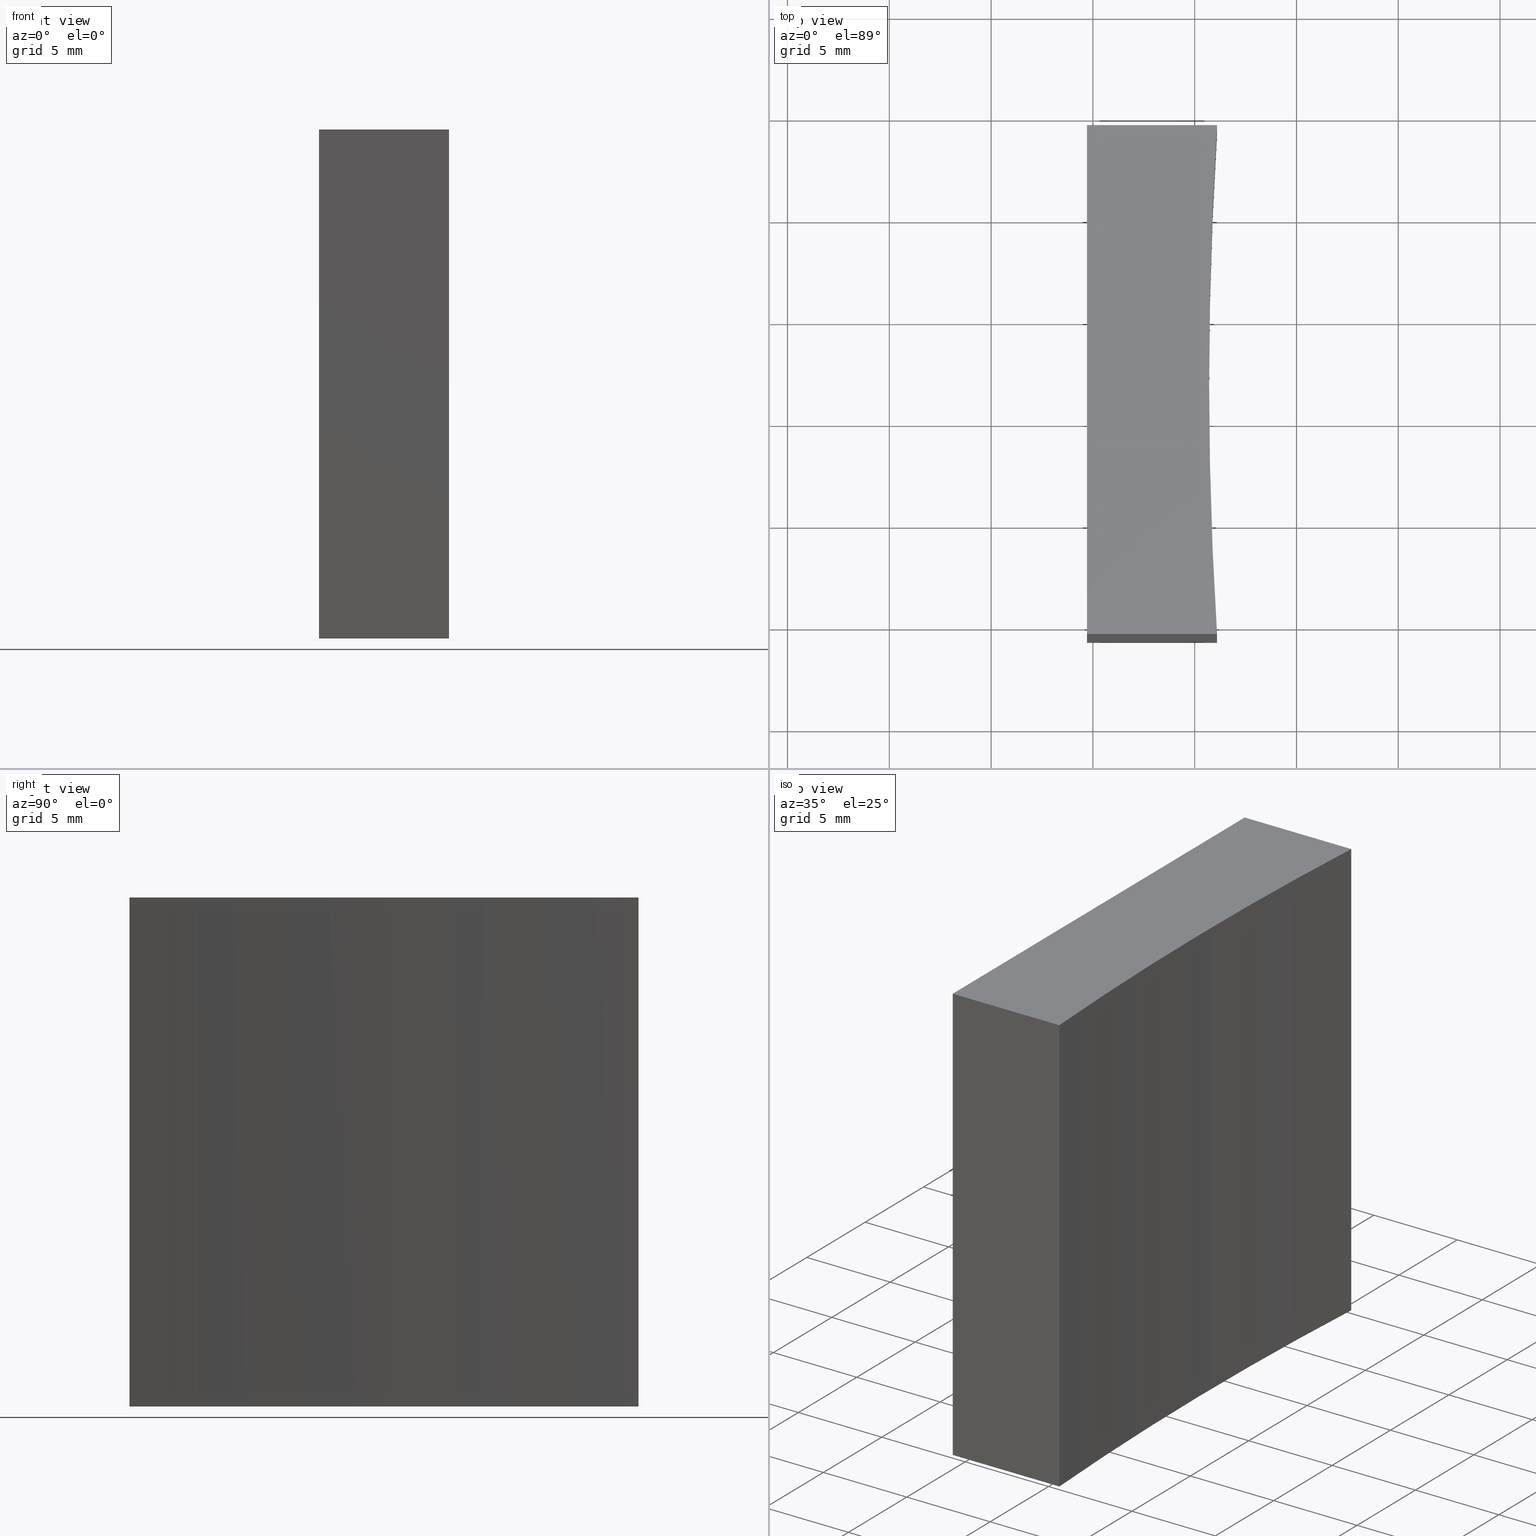
[diagram: canonical four-view strip — front | top / right | iso, engineering-drawing reading convention]
A machine part, canonical four-view strip (front | top / right | iso — engineering-drawing reading convention). The complete STEP part file that produces these views, byte-faithful:
ISO-10303-21;
HEADER;
FILE_DESCRIPTION (( 'STEP AP214' ),
    '1' );
FILE_NAME ('280018.STEP',
    '2019-08-08T02:40:54',
    ( '' ),
    ( '' ),
    'SwSTEP 2.0',
    'SolidWorks 2016',
    '' );
FILE_SCHEMA (( 'AUTOMOTIVE_DESIGN' ));
ENDSEC;

DATA;
#1 = DIRECTION ( 'NONE',  ( -1.000000000000000000, -0.0000000000000000000, -0.0000000000000000000 ) ) ;
#2 = FACE_OUTER_BOUND ( 'NONE', #105, .T. ) ;
#3 = CARTESIAN_POINT ( 'NONE',  ( 291.0981428478888800, 79.35792926776707600, 0.0000000000000000000 ) ) ;
#4 = DIRECTION ( 'NONE',  ( -1.000000000000000000, -0.0000000000000000000, -0.0000000000000000000 ) ) ;
#5 = VECTOR ( 'NONE', #77, 1000.000000000000000 ) ;
#6 = ORIENTED_EDGE ( 'NONE', *, *, #238, .F. ) ;
#7 = DIRECTION ( 'NONE',  ( -0.0000000000000000000, -0.0000000000000000000, -1.000000000000000000 ) ) ;
#8 = VERTEX_POINT ( 'NONE', #39 ) ;
#9 = APPLICATION_PROTOCOL_DEFINITION ( 'draft international standard', 'automotive_design', 1998, #206 ) ;
#10 = PLANE ( 'NONE',  #226 ) ;
#11 = SURFACE_STYLE_FILL_AREA ( #186 ) ;
#12 = ADVANCED_FACE ( 'NONE', ( #89 ), #219, .T. ) ;
#13 = DIRECTION ( 'NONE',  ( 0.0000000000000000000, 0.0000000000000000000, 1.000000000000000000 ) ) ;
#14 = ORIENTED_EDGE ( 'NONE', *, *, #79, .T. ) ;
#15 = AXIS2_PLACEMENT_3D ( 'NONE', #197, #218, #196 ) ;
#16 = FACE_OUTER_BOUND ( 'NONE', #211, .T. ) ;
#17 = SURFACE_STYLE_USAGE ( .BOTH. , #122 ) ;
#18 = ORIENTED_EDGE ( 'NONE', *, *, #192, .T. ) ;
#19 = PRODUCT_DEFINITION_SHAPE ( 'NONE', 'NONE',  #72 ) ;
#20 = LINE ( 'NONE', #48, #32 ) ;
#21 = ORIENTED_EDGE ( 'NONE', *, *, #85, .F. ) ;
#22 = DIRECTION ( 'NONE',  ( -1.000000000000000000, 0.0000000000000000000, 0.0000000000000000000 ) ) ;
#23 = DIRECTION ( 'NONE',  ( 1.000000000000000000, 9.771549775893063200E-015, -0.0000000000000000000 ) ) ;
#24 = ORIENTED_EDGE ( 'NONE', *, *, #85, .T. ) ;
#25 = CARTESIAN_POINT ( 'NONE',  ( 291.0981428478888800, 54.35792926776720400, 25.00000000000000000 ) ) ;
#26 = CIRCLE ( 'NONE', #189, 200.0000000000000000 ) ;
#27 = CYLINDRICAL_SURFACE ( 'NONE', #58, 200.0000000000000000 ) ;
#28 = CARTESIAN_POINT ( 'NONE',  ( 284.7071356312820900, 79.35792926776707600, 25.00000000000000000 ) ) ;
#29 = CARTESIAN_POINT ( 'NONE',  ( 490.7071356312802700, 66.85792926776710500, 0.0000000000000000000 ) ) ;
#30 = APPLICATION_PROTOCOL_DEFINITION ( 'draft international standard', 'automotive_design', 1998, #135 ) ;
#31 =( LENGTH_UNIT ( ) NAMED_UNIT ( * ) SI_UNIT ( .MILLI., .METRE. ) );
#32 = VECTOR ( 'NONE', #114, 1000.000000000000000 ) ;
#33 = EDGE_LOOP ( 'NONE', ( #138, #136, #153, #158, #176 ) ) ;
#34 = EDGE_CURVE ( 'NONE', #40, #53, #187, .T. ) ;
#35 = ORIENTED_EDGE ( 'NONE', *, *, #70, .T. ) ;
#36 =( GEOMETRIC_REPRESENTATION_CONTEXT ( 3 ) GLOBAL_UNCERTAINTY_ASSIGNED_CONTEXT ( ( #52 ) ) GLOBAL_UNIT_ASSIGNED_CONTEXT ( ( #31, #188, #209 ) ) REPRESENTATION_CONTEXT ( 'NONE', 'WORKASPACE' ) );
#37 = MANIFOLD_SOLID_BREP ( '͹̨-����1', #193 ) ;
#38 = EDGE_LOOP ( 'NONE', ( #14, #112, #67, #18 ) ) ;
#39 = CARTESIAN_POINT ( 'NONE',  ( 290.7071356312802700, 66.85792926776710500, 0.0000000000000000000 ) ) ;
#40 = VERTEX_POINT ( 'NONE', #139 ) ;
#41 = EDGE_CURVE ( 'NONE', #53, #54, #57, .T. ) ;
#42 = CARTESIAN_POINT ( 'NONE',  ( 284.7071356312820900, 54.35792926776707600, 0.0000000000000000000 ) ) ;
#43 = DIRECTION ( 'NONE',  ( 1.000000000000000000, 0.0000000000000000000, 0.0000000000000000000 ) ) ;
#44 = DIRECTION ( 'NONE',  ( -0.0000000000000000000, -0.0000000000000000000, -1.000000000000000000 ) ) ;
#45 = SHAPE_DEFINITION_REPRESENTATION ( #19, #104 ) ;
#46 = VECTOR ( 'NONE', #50, 1000.000000000000000 ) ;
#47 = PRESENTATION_STYLE_ASSIGNMENT (( #17 ) ) ;
#48 = CARTESIAN_POINT ( 'NONE',  ( 291.0981428478888800, 54.35792926776714000, 25.00000000000000000 ) ) ;
#49 = ADVANCED_FACE ( 'NONE', ( #232 ), #107, .F. ) ;
#50 = DIRECTION ( 'NONE',  ( -0.0000000000000000000, -0.0000000000000000000, -1.000000000000000000 ) ) ;
#51 = VERTEX_POINT ( 'NONE', #3 ) ;
#52 = UNCERTAINTY_MEASURE_WITH_UNIT (LENGTH_MEASURE( 1.000000000000000100E-005 ), #31, 'distance_accuracy_value', 'NONE');
#53 = VERTEX_POINT ( 'NONE', #63 ) ;
#54 = VERTEX_POINT ( 'NONE', #202 ) ;
#55 = STYLED_ITEM ( 'NONE', ( #47 ), #37 ) ;
#56 = VECTOR ( 'NONE', #131, 1000.000000000000000 ) ;
#57 = CIRCLE ( 'NONE', #99, 200.0000000000000000 ) ;
#58 = AXIS2_PLACEMENT_3D ( 'NONE', #239, #44, #22 ) ;
#59 =( NAMED_UNIT ( * ) SI_UNIT ( $, .STERADIAN. ) SOLID_ANGLE_UNIT ( ) );
#60 = CARTESIAN_POINT ( 'NONE',  ( 284.7071356312820900, 66.85792926776707600, 0.0000000000000000000 ) ) ;
#61 = CARTESIAN_POINT ( 'NONE',  ( 490.7071356312802700, 66.85792926776710500, 0.0000000000000000000 ) ) ;
#62 = VERTEX_POINT ( 'NONE', #127 ) ;
#63 = CARTESIAN_POINT ( 'NONE',  ( 290.7071356312802700, 66.85792926776710500, 25.00000000000000000 ) ) ;
#64 = CARTESIAN_POINT ( 'NONE',  ( 284.7071356312820900, 54.35792926776707600, 25.00000000000000000 ) ) ;
#65 = DIRECTION ( 'NONE',  ( -0.0000000000000000000, -0.0000000000000000000, -1.000000000000000000 ) ) ;
#66 = PRESENTATION_LAYER_ASSIGNMENT (  '', '', ( #55 ) ) ;
#67 = ORIENTED_EDGE ( 'NONE', *, *, #142, .F. ) ;
#68 = FILL_AREA_STYLE_COLOUR ( '', #150 ) ;
#69 = AXIS2_PLACEMENT_3D ( 'NONE', #149, #13, #152 ) ;
#70 = EDGE_CURVE ( 'NONE', #210, #8, #224, .T. ) ;
#71 = LINE ( 'NONE', #108, #217 ) ;
#72 = PRODUCT_DEFINITION ( 'δ֪', '', #116, #156 ) ;
#73 = FILL_AREA_STYLE_COLOUR ( '', #118 ) ;
#74 = UNCERTAINTY_MEASURE_WITH_UNIT (LENGTH_MEASURE( 1.000000000000000100E-005 ), #207, 'distance_accuracy_value', 'NONE');
#75 = ORIENTED_EDGE ( 'NONE', *, *, #161, .T. ) ;
#76 = DIRECTION ( 'NONE',  ( 0.0000000000000000000, -1.000000000000000000, 0.0000000000000000000 ) ) ;
#77 = DIRECTION ( 'NONE',  ( -0.0000000000000000000, -1.000000000000000000, -0.0000000000000000000 ) ) ;
#78 = CARTESIAN_POINT ( 'NONE',  ( 490.7071356312802700, 66.85792926776710500, 0.0000000000000000000 ) ) ;
#79 = EDGE_CURVE ( 'NONE', #51, #62, #71, .T. ) ;
#80 = DIRECTION ( 'NONE',  ( -0.0000000000000000000, -0.0000000000000000000, -1.000000000000000000 ) ) ;
#81 = DIRECTION ( 'NONE',  ( -0.0000000000000000000, -0.0000000000000000000, -1.000000000000000000 ) ) ;
#82 =( NAMED_UNIT ( * ) SI_UNIT ( $, .STERADIAN. ) SOLID_ANGLE_UNIT ( ) );
#83 = ADVANCED_FACE ( 'NONE', ( #123 ), #227, .F. ) ;
#84 = SURFACE_STYLE_USAGE ( .BOTH. , #170 ) ;
#85 = EDGE_CURVE ( 'NONE', #62, #130, #100, .T. ) ;
#86 = PRODUCT ( '280018', '280018', '', ( #133 ) ) ;
#87 = PRESENTATION_STYLE_ASSIGNMENT (( #84 ) ) ;
#88 = DIRECTION ( 'NONE',  ( 1.000000000000000000, 0.0000000000000000000, -0.0000000000000000000 ) ) ;
#89 = FACE_OUTER_BOUND ( 'NONE', #33, .T. ) ;
#90 = PRODUCT_RELATED_PRODUCT_CATEGORY ( 'part', '', ( #86 ) ) ;
#91 = DIRECTION ( 'NONE',  ( 0.0000000000000000000, 0.0000000000000000000, -1.000000000000000000 ) ) ;
#92 = DIRECTION ( 'NONE',  ( 0.0000000000000000000, -0.0000000000000000000, -1.000000000000000000 ) ) ;
#93 = DIRECTION ( 'NONE',  ( -0.0000000000000000000, -0.0000000000000000000, -1.000000000000000000 ) ) ;
#94 = DIRECTION ( 'NONE',  ( -1.000000000000000000, 0.0000000000000000000, 0.0000000000000000000 ) ) ;
#95 = ORIENTED_EDGE ( 'NONE', *, *, #198, .F. ) ;
#96 = DIRECTION ( 'NONE',  ( 1.000000000000000000, 0.0000000000000000000, 0.0000000000000000000 ) ) ;
#97 = MECHANICAL_DESIGN_GEOMETRIC_PRESENTATION_REPRESENTATION (  '', ( #195 ), #36 ) ;
#98 = CARTESIAN_POINT ( 'NONE',  ( 284.7071356312820900, 54.35792926776707600, 25.00000000000000000 ) ) ;
#99 = AXIS2_PLACEMENT_3D ( 'NONE', #144, #125, #222 ) ;
#100 = LINE ( 'NONE', #60, #5 ) ;
#101 = DIRECTION ( 'NONE',  ( -0.0000000000000000000, -0.0000000000000000000, -1.000000000000000000 ) ) ;
#102 = VECTOR ( 'NONE', #7, 1000.000000000000000 ) ;
#103 = FILL_AREA_STYLE ('',( #73 ) ) ;
#104 = ADVANCED_BREP_SHAPE_REPRESENTATION ( '280018', ( #37, #69 ), #220 ) ;
#105 = EDGE_LOOP ( 'NONE', ( #221, #75, #191, #233 ) ) ;
#106 = VERTEX_POINT ( 'NONE', #223 ) ;
#107 = PLANE ( 'NONE',  #120 ) ;
#108 = CARTESIAN_POINT ( 'NONE',  ( 284.7071356312820900, 79.35792926776707600, 0.0000000000000000000 ) ) ;
#109 = VECTOR ( 'NONE', #23, 1000.000000000000000 ) ;
#110 = CARTESIAN_POINT ( 'NONE',  ( 284.7071356312820900, 66.85792926776707600, 25.00000000000000000 ) ) ;
#111 = CARTESIAN_POINT ( 'NONE',  ( 291.0981428478888800, 54.35792926776720400, 0.0000000000000000000 ) ) ;
#112 = ORIENTED_EDGE ( 'NONE', *, *, #230, .F. ) ;
#113 = CARTESIAN_POINT ( 'NONE',  ( 291.0981428478888800, 79.35792926776707600, 25.00000000000000000 ) ) ;
#114 = DIRECTION ( 'NONE',  ( 1.000000000000000000, 9.771549775893063200E-015, -0.0000000000000000000 ) ) ;
#115 = ADVANCED_FACE ( 'NONE', ( #121 ), #216, .F. ) ;
#116 = PRODUCT_DEFINITION_FORMATION_WITH_SPECIFIED_SOURCE ( '�κ�', '', #86, .NOT_KNOWN. ) ;
#117 = LINE ( 'NONE', #98, #56 ) ;
#118 = COLOUR_RGB ( '',1.000000000000000000, 1.000000000000000000, 1.000000000000000000 ) ;
#119 = ORIENTED_EDGE ( 'NONE', *, *, #173, .T. ) ;
#120 = AXIS2_PLACEMENT_3D ( 'NONE', #110, #43, #91 ) ;
#121 = FACE_OUTER_BOUND ( 'NONE', #235, .T. ) ;
#122 = SURFACE_SIDE_STYLE ('',( #169 ) ) ;
#123 = FACE_OUTER_BOUND ( 'NONE', #171, .T. ) ;
#124 = LINE ( 'NONE', #25, #46 ) ;
#125 = DIRECTION ( 'NONE',  ( -0.0000000000000000000, -0.0000000000000000000, -1.000000000000000000 ) ) ;
#126 =( GEOMETRIC_REPRESENTATION_CONTEXT ( 3 ) GLOBAL_UNCERTAINTY_ASSIGNED_CONTEXT ( ( #177 ) ) GLOBAL_UNIT_ASSIGNED_CONTEXT ( ( #159, #175, #59 ) ) REPRESENTATION_CONTEXT ( 'NONE', 'WORKASPACE' ) );
#127 = CARTESIAN_POINT ( 'NONE',  ( 284.7071356312820900, 79.35792926776707600, 0.0000000000000000000 ) ) ;
#128 = DIRECTION ( 'NONE',  ( 1.000000000000000000, 0.0000000000000000000, 0.0000000000000000000 ) ) ;
#129 = PRESENTATION_LAYER_ASSIGNMENT (  '', '', ( #195 ) ) ;
#130 = VERTEX_POINT ( 'NONE', #42 ) ;
#131 = DIRECTION ( 'NONE',  ( -0.0000000000000000000, -1.000000000000000000, -0.0000000000000000000 ) ) ;
#132 = ADVANCED_FACE ( 'NONE', ( #2 ), #27, .F. ) ;
#133 = PRODUCT_CONTEXT ( 'NONE', #206, 'mechanical' ) ;
#134 = ADVANCED_FACE ( 'NONE', ( #167 ), #178, .F. ) ;
#135 = APPLICATION_CONTEXT ( 'automotive_design' ) ;
#136 = ORIENTED_EDGE ( 'NONE', *, *, #203, .T. ) ;
#137 = ORIENTED_EDGE ( 'NONE', *, *, #70, .F. ) ;
#138 = ORIENTED_EDGE ( 'NONE', *, *, #198, .T. ) ;
#139 = CARTESIAN_POINT ( 'NONE',  ( 291.0981428478888800, 54.35792926776720400, 25.00000000000000000 ) ) ;
#140 = ORIENTED_EDGE ( 'NONE', *, *, #34, .F. ) ;
#141 = EDGE_LOOP ( 'NONE', ( #24, #6, #95, #174 ) ) ;
#142 = EDGE_CURVE ( 'NONE', #54, #106, #154, .T. ) ;
#143 = LINE ( 'NONE', #164, #109 ) ;
#144 = CARTESIAN_POINT ( 'NONE',  ( 490.7071356312802700, 66.85792926776710500, 25.00000000000000000 ) ) ;
#145 = CARTESIAN_POINT ( 'NONE',  ( 284.7071356312820900, 79.35792926776707600, 25.00000000000000000 ) ) ;
#146 = ORIENTED_EDGE ( 'NONE', *, *, #161, .F. ) ;
#147 = CARTESIAN_POINT ( 'NONE',  ( 284.7071356312820900, 54.35792926776707600, 25.00000000000000000 ) ) ;
#148 = CARTESIAN_POINT ( 'NONE',  ( 291.0981428478888800, 54.35792926776714000, 25.00000000000000000 ) ) ;
#149 = CARTESIAN_POINT ( 'NONE',  ( 0.0000000000000000000, 0.0000000000000000000, 0.0000000000000000000 ) ) ;
#150 = COLOUR_RGB ( '',1.000000000000000000, 1.000000000000000000, 1.000000000000000000 ) ;
#151 = ADVANCED_FACE ( 'NONE', ( #16 ), #10, .F. ) ;
#152 = DIRECTION ( 'NONE',  ( 1.000000000000000000, 0.0000000000000000000, 0.0000000000000000000 ) ) ;
#153 = ORIENTED_EDGE ( 'NONE', *, *, #34, .T. ) ;
#154 = LINE ( 'NONE', #204, #157 ) ;
#155 = AXIS2_PLACEMENT_3D ( 'NONE', #78, #93, #128 ) ;
#156 = PRODUCT_DEFINITION_CONTEXT ( 'detailed design', #135, 'design' ) ;
#157 = VECTOR ( 'NONE', #1, 1000.000000000000000 ) ;
#158 = ORIENTED_EDGE ( 'NONE', *, *, #41, .T. ) ;
#159 =( LENGTH_UNIT ( ) NAMED_UNIT ( * ) SI_UNIT ( .MILLI., .METRE. ) );
#160 = DIRECTION ( 'NONE',  ( 0.0000000000000000000, 0.0000000000000000000, 1.000000000000000000 ) ) ;
#161 = EDGE_CURVE ( 'NONE', #53, #8, #162, .T. ) ;
#162 = LINE ( 'NONE', #228, #102 ) ;
#163 = ORIENTED_EDGE ( 'NONE', *, *, #79, .F. ) ;
#164 = CARTESIAN_POINT ( 'NONE',  ( 291.0981428478888800, 54.35792926776714000, 0.0000000000000000000 ) ) ;
#165 = AXIS2_PLACEMENT_3D ( 'NONE', #61, #225, #201 ) ;
#166 = VECTOR ( 'NONE', #101, 1000.000000000000000 ) ;
#167 = FACE_OUTER_BOUND ( 'NONE', #38, .T. ) ;
#168 = DIRECTION ( 'NONE',  ( -9.771549775893063200E-015, 1.000000000000000000, 0.0000000000000000000 ) ) ;
#169 = SURFACE_STYLE_FILL_AREA ( #103 ) ;
#170 = SURFACE_SIDE_STYLE ('',( #11 ) ) ;
#171 = EDGE_LOOP ( 'NONE', ( #237, #21, #163, #200, #137 ) ) ;
#172 = LINE ( 'NONE', #64, #236 ) ;
#173 = EDGE_CURVE ( 'NONE', #130, #210, #143, .T. ) ;
#174 = ORIENTED_EDGE ( 'NONE', *, *, #230, .T. ) ;
#175 =( NAMED_UNIT ( * ) PLANE_ANGLE_UNIT ( ) SI_UNIT ( $, .RADIAN. ) );
#176 = ORIENTED_EDGE ( 'NONE', *, *, #142, .T. ) ;
#177 = UNCERTAINTY_MEASURE_WITH_UNIT (LENGTH_MEASURE( 1.000000000000000100E-005 ), #159, 'distance_accuracy_value', 'NONE');
#178 = PLANE ( 'NONE',  #180 ) ;
#179 = ORIENTED_EDGE ( 'NONE', *, *, #203, .F. ) ;
#180 = AXIS2_PLACEMENT_3D ( 'NONE', #145, #76, #92 ) ;
#181 = CARTESIAN_POINT ( 'NONE',  ( 490.7071356312802700, 66.85792926776710500, 25.00000000000000000 ) ) ;
#182 = LINE ( 'NONE', #113, #166 ) ;
#183 = ORIENTED_EDGE ( 'NONE', *, *, #238, .T. ) ;
#184 = EDGE_CURVE ( 'NONE', #40, #210, #124, .T. ) ;
#185 =( NAMED_UNIT ( * ) PLANE_ANGLE_UNIT ( ) SI_UNIT ( $, .RADIAN. ) );
#186 = FILL_AREA_STYLE ('',( #68 ) ) ;
#187 = CIRCLE ( 'NONE', #15, 200.0000000000000000 ) ;
#188 =( NAMED_UNIT ( * ) PLANE_ANGLE_UNIT ( ) SI_UNIT ( $, .RADIAN. ) );
#189 = AXIS2_PLACEMENT_3D ( 'NONE', #29, #81, #96 ) ;
#190 = ORIENTED_EDGE ( 'NONE', *, *, #184, .T. ) ;
#191 = ORIENTED_EDGE ( 'NONE', *, *, #234, .T. ) ;
#192 = EDGE_CURVE ( 'NONE', #54, #51, #182, .T. ) ;
#193 = CLOSED_SHELL ( 'NONE', ( #132, #151, #115, #134, #49, #12, #83 ) ) ;
#194 = VERTEX_POINT ( 'NONE', #147 ) ;
#195 = STYLED_ITEM ( 'NONE', ( #87 ), #104 ) ;
#196 = DIRECTION ( 'NONE',  ( 1.000000000000000000, 0.0000000000000000000, 0.0000000000000000000 ) ) ;
#197 = CARTESIAN_POINT ( 'NONE',  ( 490.7071356312802700, 66.85792926776710500, 25.00000000000000000 ) ) ;
#198 = EDGE_CURVE ( 'NONE', #106, #194, #117, .T. ) ;
#199 = DIRECTION ( 'NONE',  ( -0.0000000000000000000, -0.0000000000000000000, -1.000000000000000000 ) ) ;
#200 = ORIENTED_EDGE ( 'NONE', *, *, #234, .F. ) ;
#201 = DIRECTION ( 'NONE',  ( 1.000000000000000000, 0.0000000000000000000, -0.0000000000000000000 ) ) ;
#202 = CARTESIAN_POINT ( 'NONE',  ( 291.0981428478888800, 79.35792926776707600, 25.00000000000000000 ) ) ;
#203 = EDGE_CURVE ( 'NONE', #194, #40, #20, .T. ) ;
#204 = CARTESIAN_POINT ( 'NONE',  ( 284.7071356312820900, 79.35792926776707600, 25.00000000000000000 ) ) ;
#205 = ORIENTED_EDGE ( 'NONE', *, *, #184, .F. ) ;
#206 = APPLICATION_CONTEXT ( 'automotive_design' ) ;
#207 =( LENGTH_UNIT ( ) NAMED_UNIT ( * ) SI_UNIT ( .MILLI., .METRE. ) );
#208 = MECHANICAL_DESIGN_GEOMETRIC_PRESENTATION_REPRESENTATION (  '', ( #55 ), #126 ) ;
#209 =( NAMED_UNIT ( * ) SI_UNIT ( $, .STERADIAN. ) SOLID_ANGLE_UNIT ( ) );
#210 = VERTEX_POINT ( 'NONE', #111 ) ;
#211 = EDGE_LOOP ( 'NONE', ( #119, #205, #179, #183 ) ) ;
#212 = AXIS2_PLACEMENT_3D ( 'NONE', #215, #160, #88 ) ;
#213 = LINE ( 'NONE', #28, #229 ) ;
#214 = AXIS2_PLACEMENT_3D ( 'NONE', #181, #199, #94 ) ;
#215 = CARTESIAN_POINT ( 'NONE',  ( 490.7071356312802700, 66.85792926776710500, 25.00000000000000000 ) ) ;
#216 = CYLINDRICAL_SURFACE ( 'NONE', #214, 200.0000000000000000 ) ;
#217 = VECTOR ( 'NONE', #4, 1000.000000000000000 ) ;
#218 = DIRECTION ( 'NONE',  ( -0.0000000000000000000, -0.0000000000000000000, -1.000000000000000000 ) ) ;
#219 = PLANE ( 'NONE',  #212 ) ;
#220 =( GEOMETRIC_REPRESENTATION_CONTEXT ( 3 ) GLOBAL_UNCERTAINTY_ASSIGNED_CONTEXT ( ( #74 ) ) GLOBAL_UNIT_ASSIGNED_CONTEXT ( ( #207, #185, #82 ) ) REPRESENTATION_CONTEXT ( 'NONE', 'WORKASPACE' ) );
#221 = ORIENTED_EDGE ( 'NONE', *, *, #41, .F. ) ;
#222 = DIRECTION ( 'NONE',  ( 1.000000000000000000, 0.0000000000000000000, 0.0000000000000000000 ) ) ;
#223 = CARTESIAN_POINT ( 'NONE',  ( 284.7071356312820900, 79.35792926776707600, 25.00000000000000000 ) ) ;
#224 = CIRCLE ( 'NONE', #155, 200.0000000000000000 ) ;
#225 = DIRECTION ( 'NONE',  ( 0.0000000000000000000, 0.0000000000000000000, 1.000000000000000000 ) ) ;
#226 = AXIS2_PLACEMENT_3D ( 'NONE', #148, #168, #231 ) ;
#227 = PLANE ( 'NONE',  #165 ) ;
#228 = CARTESIAN_POINT ( 'NONE',  ( 290.7071356312802700, 66.85792926776710500, 25.00000000000000000 ) ) ;
#229 = VECTOR ( 'NONE', #80, 1000.000000000000000 ) ;
#230 = EDGE_CURVE ( 'NONE', #106, #62, #213, .T. ) ;
#231 = DIRECTION ( 'NONE',  ( -1.000000000000000000, -9.771549775893063200E-015, 0.0000000000000000000 ) ) ;
#232 = FACE_OUTER_BOUND ( 'NONE', #141, .T. ) ;
#233 = ORIENTED_EDGE ( 'NONE', *, *, #192, .F. ) ;
#234 = EDGE_CURVE ( 'NONE', #8, #51, #26, .T. ) ;
#235 = EDGE_LOOP ( 'NONE', ( #146, #140, #190, #35 ) ) ;
#236 = VECTOR ( 'NONE', #65, 1000.000000000000000 ) ;
#237 = ORIENTED_EDGE ( 'NONE', *, *, #173, .F. ) ;
#238 = EDGE_CURVE ( 'NONE', #194, #130, #172, .T. ) ;
#239 = CARTESIAN_POINT ( 'NONE',  ( 490.7071356312802700, 66.85792926776710500, 25.00000000000000000 ) ) ;
ENDSEC;
END-ISO-10303-21;
